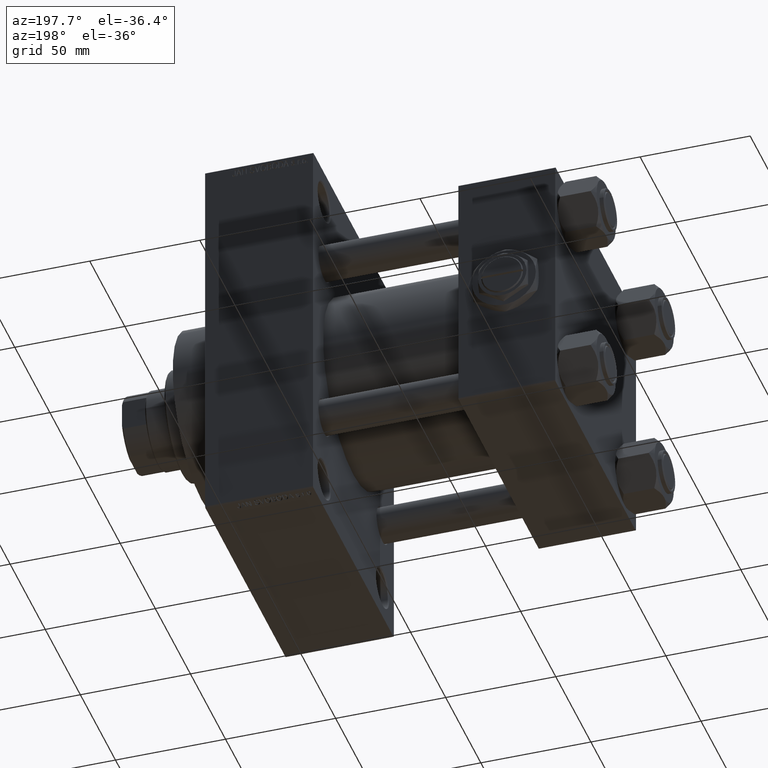
[diagram: clean part render]
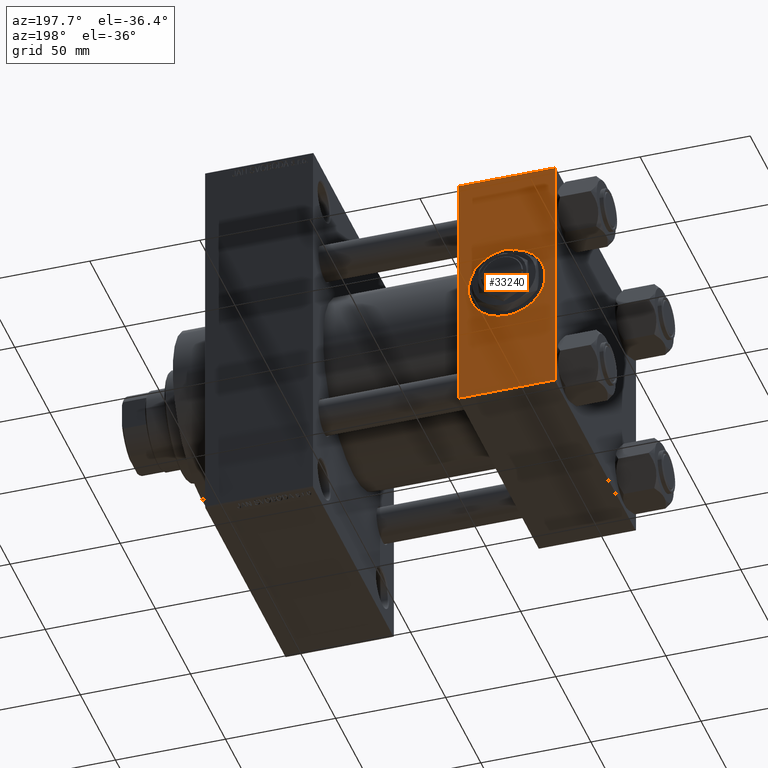
[diagram: same view with one face highlighted and labeled with its STEP entity id]
A machine part, auxiliary view. The second image highlights one B-rep face of the part: STEP entity #33240.
In plain terms, the highlighted planar face has unit normal (0, 1, 0).
Its self-contained STEP definition (entity closure, byte-faithful):
#946 = CARTESIAN_POINT ( 'NONE',  ( 44.00000000000000000, 57.49999999999999289, 57.00000000000003553 ) ) ;
#1430 = ORIENTED_EDGE ( 'NONE', *, *, #30023, .F. ) ;
#2090 = VERTEX_POINT ( 'NONE', #30817 ) ;
#2414 = VECTOR ( 'NONE', #23934, 1000.000000000000000 ) ;
#3564 = EDGE_CURVE ( 'NONE', #30750, #4024, #16078, .T. ) ;
#3987 = VECTOR ( 'NONE', #34491, 1000.000000000000000 ) ;
#4024 = VERTEX_POINT ( 'NONE', #47276 ) ;
#6187 = DIRECTION ( 'NONE',  ( 0.000000000000000000, -0.000000000000000000, 1.000000000000000000 ) ) ;
#6188 = EDGE_LOOP ( 'NONE', ( #12189, #34973 ) ) ;
#7307 = CARTESIAN_POINT ( 'NONE',  ( 0.000000000000000000, 57.49999999999999289, 57.50000000000000711 ) ) ;
#7483 = EDGE_LOOP ( 'NONE', ( #37721, #39457, #1430, #27248 ) ) ;
#7701 = VECTOR ( 'NONE', #22449, 1000.000000000000000 ) ;
#9281 = EDGE_CURVE ( 'NONE', #12652, #2090, #20010, .T. ) ;
#12189 = ORIENTED_EDGE ( 'NONE', *, *, #32877, .F. ) ;
#12652 = VERTEX_POINT ( 'NONE', #20365 ) ;
#13083 = DIRECTION ( 'NONE',  ( 0.000000000000000000, 0.000000000000000000, 1.000000000000000000 ) ) ;
#14201 = CARTESIAN_POINT ( 'NONE',  ( 0.000000000000000000, 57.49999999999999289, -57.00000000000000711 ) ) ;
#15182 = VERTEX_POINT ( 'NONE', #48044 ) ;
#16064 = VECTOR ( 'NONE', #18164, 1000.000000000000000 ) ;
#16078 = LINE ( 'NONE', #946, #3987 ) ;
#18164 = DIRECTION ( 'NONE',  ( 0.000000000000000000, 0.000000000000000000, -1.000000000000000000 ) ) ;
#18721 = CARTESIAN_POINT ( 'NONE',  ( 0.000000000000000000, 57.49999999999999289, 57.00000000000003553 ) ) ;
#20010 = CIRCLE ( 'NONE', #47801, 17.50000000000000000 ) ;
#20365 = CARTESIAN_POINT ( 'NONE',  ( 22.00000000000000355, 57.49999999999999289, -17.50000000000000000 ) ) ;
#20537 = DIRECTION ( 'NONE',  ( 0.000000000000000000, 1.000000000000000000, 0.000000000000000000 ) ) ;
#21073 = EDGE_CURVE ( 'NONE', #4024, #15182, #21659, .T. ) ;
#21659 = LINE ( 'NONE', #29360, #16064 ) ;
#22449 = DIRECTION ( 'NONE',  ( 0.000000000000000000, 0.000000000000000000, -1.000000000000000000 ) ) ;
#23934 = DIRECTION ( 'NONE',  ( -1.000000000000000000, 0.000000000000000000, 0.000000000000000000 ) ) ;
#25218 = AXIS2_PLACEMENT_3D ( 'NONE', #36217, #42936, #6187 ) ;
#27248 = ORIENTED_EDGE ( 'NONE', *, *, #3564, .T. ) ;
#28101 = CARTESIAN_POINT ( 'NONE',  ( 22.00000000000000000, 57.49999999999999289, 0.000000000000000000 ) ) ;
#29360 = CARTESIAN_POINT ( 'NONE',  ( 44.00000000000000000, 57.49999999999999289, 57.50000000000000711 ) ) ;
#30023 = EDGE_CURVE ( 'NONE', #30750, #33937, #41324, .T. ) ;
#30750 = VERTEX_POINT ( 'NONE', #18721 ) ;
#30817 = CARTESIAN_POINT ( 'NONE',  ( 22.00000000000000000, 57.49999999999999289, 17.50000000000000000 ) ) ;
#32000 = FACE_BOUND ( 'NONE', #6188, .T. ) ;
#32877 = EDGE_CURVE ( 'NONE', #2090, #12652, #39469, .T. ) ;
#33240 = ADVANCED_FACE ( 'NONE', ( #32000, #40194 ), #35482, .T. ) ;
#33937 = VERTEX_POINT ( 'NONE', #14201 ) ;
#34491 = DIRECTION ( 'NONE',  ( 1.000000000000000000, 0.000000000000000000, 0.000000000000000000 ) ) ;
#34973 = ORIENTED_EDGE ( 'NONE', *, *, #9281, .F. ) ;
#35482 = PLANE ( 'NONE',  #25218 ) ;
#35609 = CARTESIAN_POINT ( 'NONE',  ( 44.00000000000000000, 57.49999999999999289, -57.00000000000000711 ) ) ;
#36217 = CARTESIAN_POINT ( 'NONE',  ( 44.00000000000000000, 57.49999999999999289, 57.50000000000000711 ) ) ;
#37106 = AXIS2_PLACEMENT_3D ( 'NONE', #28101, #43998, #43496 ) ;
#37721 = ORIENTED_EDGE ( 'NONE', *, *, #21073, .T. ) ;
#39457 = ORIENTED_EDGE ( 'NONE', *, *, #42525, .T. ) ;
#39469 = CIRCLE ( 'NONE', #37106, 17.50000000000000000 ) ;
#40194 = FACE_OUTER_BOUND ( 'NONE', #7483, .T. ) ;
#41324 = LINE ( 'NONE', #7307, #7701 ) ;
#42525 = EDGE_CURVE ( 'NONE', #15182, #33937, #42824, .T. ) ;
#42824 = LINE ( 'NONE', #35609, #2414 ) ;
#42902 = CARTESIAN_POINT ( 'NONE',  ( 22.00000000000000000, 57.49999999999999289, 0.000000000000000000 ) ) ;
#42936 = DIRECTION ( 'NONE',  ( -0.000000000000000000, 1.000000000000000000, 0.000000000000000000 ) ) ;
#43496 = DIRECTION ( 'NONE',  ( 0.000000000000000000, 0.000000000000000000, 1.000000000000000000 ) ) ;
#43998 = DIRECTION ( 'NONE',  ( 0.000000000000000000, 1.000000000000000000, 0.000000000000000000 ) ) ;
#47276 = CARTESIAN_POINT ( 'NONE',  ( 44.00000000000000000, 57.49999999999999289, 57.00000000000003553 ) ) ;
#47801 = AXIS2_PLACEMENT_3D ( 'NONE', #42902, #20537, #13083 ) ;
#48044 = CARTESIAN_POINT ( 'NONE',  ( 44.00000000000000000, 57.49999999999999289, -57.00000000000000711 ) ) ;